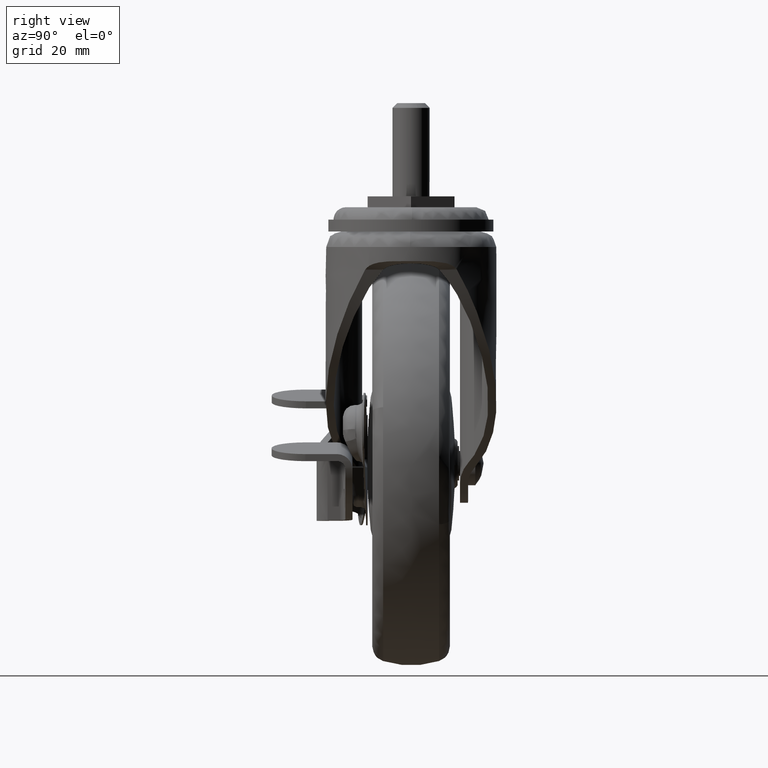
[diagram: clean part render]
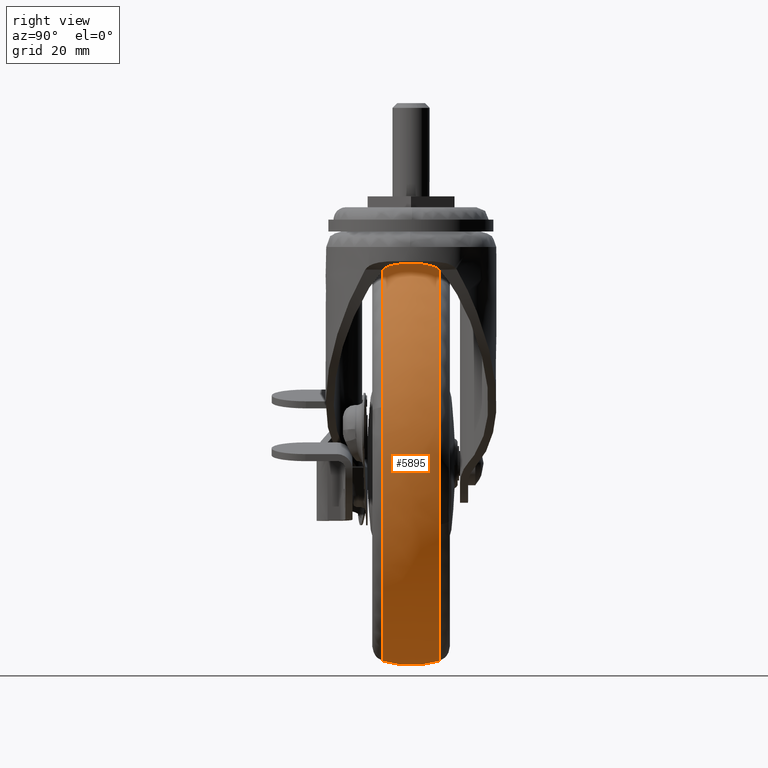
[diagram: same view with one face highlighted and labeled with its STEP entity id]
A machine part, right view. The second image highlights one B-rep face of the part: STEP entity #5895.
In plain terms, the highlighted face is a freeform B-spline surface patch.
Its self-contained STEP definition (entity closure, byte-faithful):
#5544=CARTESIAN_POINT('',(-75.680395793601491,8.999999999989424,-36.273550142216607));
#5545=VERTEX_POINT('',#5544);
#5559=CARTESIAN_POINT('',(-36.0,9.0,-22.382011957491709));
#5560=VERTEX_POINT('',#5559);
#5561=CARTESIAN_POINT('',(-36.0,9.0,-22.382011957491709));
#5562=CARTESIAN_POINT('',(-58.271812164731372,9.0,-22.382011957491706));
#5563=CARTESIAN_POINT('',(-75.680395793601491,8.999999999989424,-36.273550142216607));
#5571=(BOUNDED_CURVE()B_SPLINE_CURVE(2,(#5561,#5562,#5563),.UNSPECIFIED.,.F.,.U.)B_SPLINE_CURVE_WITH_KNOTS((3,3),(0.500000000000000,0.608098577602662),.UNSPECIFIED.)CURVE()GEOMETRIC_REPRESENTATION_ITEM()RATIONAL_B_SPLINE_CURVE((1.0,0.873354638627202,0.856230744649401))REPRESENTATION_ITEM(''));
#5572=EDGE_CURVE('',#5560,#5545,#5571,.T.);
#5574=CARTESIAN_POINT('',(24.504480880001211,9.000000000095877,-105.659285548293100));
#5575=VERTEX_POINT('',#5574);
#5576=CARTESIAN_POINT('',(24.504480880001211,9.000000000095877,-105.659285548293070));
#5577=CARTESIAN_POINT('',(27.618176042508306,9.000000000000002,-96.076317206993053));
#5578=CARTESIAN_POINT('',(27.618176042508299,9.0,-86.000188000000009));
#5579=CARTESIAN_POINT('',(27.618176042508303,9.000000000000002,-22.382011957491709));
#5580=CARTESIAN_POINT('',(-36.0,9.0,-22.382011957491709));
#5588=(BOUNDED_CURVE()B_SPLINE_CURVE(2,(#5576,#5577,#5578,#5579,#5580),.UNSPECIFIED.,.F.,.U.)B_SPLINE_CURVE_WITH_KNOTS((3,2,3),(0.197450174525956,0.250000000000000,0.500000000000000),.UNSPECIFIED.)CURVE()GEOMETRIC_REPRESENTATION_ITEM()RATIONAL_B_SPLINE_CURVE((0.902750339224154,0.938434049875288,1.0,0.707106781186548,1.0))REPRESENTATION_ITEM(''));
#5589=EDGE_CURVE('',#5575,#5560,#5588,.T.);
#5646=CARTESIAN_POINT('',(-36.0,9.0,-149.618364042508290));
#5647=VERTEX_POINT('',#5646);
#5648=CARTESIAN_POINT('',(-36.0,9.0,-149.618364042508290));
#5649=CARTESIAN_POINT('',(10.221310448965543,9.0,-149.618364042508380));
#5650=CARTESIAN_POINT('',(24.504480880001211,9.000000000095877,-105.659285548293070));
#5658=(BOUNDED_CURVE()B_SPLINE_CURVE(2,(#5648,#5649,#5650),.UNSPECIFIED.,.F.,.U.)B_SPLINE_CURVE_WITH_KNOTS((3,3),(0.0,0.197450174525956),.UNSPECIFIED.)CURVE()GEOMETRIC_REPRESENTATION_ITEM()RATIONAL_B_SPLINE_CURVE((1.0,0.768672731311260,0.902750339224154))REPRESENTATION_ITEM(''));
#5659=EDGE_CURVE('',#5647,#5575,#5658,.T.);
#5661=CARTESIAN_POINT('',(-36.799418031486482,9.000019924537934,-149.613334884306990));
#5662=VERTEX_POINT('',#5661);
#5663=CARTESIAN_POINT('',(-36.799418031486475,9.000019924537934,-149.613334884306990));
#5664=CARTESIAN_POINT('',(-36.399724795627868,9.000009962268965,-149.618360909759020));
#5665=CARTESIAN_POINT('',(-36.0,9.0,-149.618364042508290));
#5673=(BOUNDED_CURVE()B_SPLINE_CURVE(2,(#5663,#5664,#5665),.UNSPECIFIED.,.F.,.U.)B_SPLINE_CURVE_WITH_KNOTS((3,3),(0.997784324749205,1.0),.UNSPECIFIED.)CURVE()GEOMETRIC_REPRESENTATION_ITEM()RATIONAL_B_SPLINE_CURVE((0.994854361993686,0.997404174975797,1.0))REPRESENTATION_ITEM(''));
#5674=EDGE_CURVE('',#5662,#5647,#5673,.T.);
#5733=CARTESIAN_POINT('',(-75.680395793609506,-8.999999999958416,-36.273550142210539));
#5734=VERTEX_POINT('',#5733);
#5735=CARTESIAN_POINT('',(-36.799418329474904,-9.000026311397241,-149.613332871817990));
#5736=VERTEX_POINT('',#5735);
#5752=CARTESIAN_POINT('',(-75.680395793601505,8.999999999989424,-36.273550142216607));
#5753=CARTESIAN_POINT('',(-77.445774361403835,3.406374E-011,-34.061214832365856));
#5754=CARTESIAN_POINT('',(-75.680395793609506,-8.999999999958416,-36.273550142210546));
#5762=(BOUNDED_CURVE()B_SPLINE_CURVE(2,(#5752,#5753,#5754),.UNSPECIFIED.,.F.,.U.)B_SPLINE_CURVE_WITH_KNOTS((3,3),(-1.494101281925805,-0.505898718077761),.UNSPECIFIED.)CURVE()GEOMETRIC_REPRESENTATION_ITEM()RATIONAL_B_SPLINE_CURVE((0.798711031347099,0.761921763406467,0.798711031346834))REPRESENTATION_ITEM(''));
#5763=EDGE_CURVE('',#5545,#5734,#5762,.T.);
#5767=CARTESIAN_POINT('',(-36.799418031486475,9.000019924537934,-149.613334884307050));
#5768=CARTESIAN_POINT('',(-36.834984902715213,-0.000003509265218,-152.443494721556190));
#5769=CARTESIAN_POINT('',(-36.799418329474904,-9.000026311397241,-149.613332871817990));
#5777=(BOUNDED_CURVE()B_SPLINE_CURVE(2,(#5767,#5768,#5769),.UNSPECIFIED.,.F.,.U.)B_SPLINE_CURVE_WITH_KNOTS((3,3),(-1.494102428604183,-0.505897203825527),.UNSPECIFIED.)CURVE()GEOMETRIC_REPRESENTATION_ITEM()RATIONAL_B_SPLINE_CURVE((0.933442071422004,0.890446773224374,0.933442103406858))REPRESENTATION_ITEM(''));
#5778=EDGE_CURVE('',#5662,#5736,#5777,.T.);
#5783=CARTESIAN_POINT('',(-36.795886817225096,9.851524995517034,-149.331514713522240));
#5784=CARTESIAN_POINT('',(26.535439896297124,9.851524995517035,-150.127401530747330));
#5785=CARTESIAN_POINT('',(27.331326713522234,9.851524995517034,-86.796074817225090));
#5786=CARTESIAN_POINT('',(28.127213530747323,9.851524995517035,-23.464748103702874));
#5787=CARTESIAN_POINT('',(-35.204113182774897,9.851524995517034,-22.668861286477778));
#5788=CARTESIAN_POINT('',(-57.823185974327963,9.851524995517035,-22.384606672105274));
#5789=CARTESIAN_POINT('',(-75.504599141389861,9.851524995517035,-36.493854811216707));
#5790=CARTESIAN_POINT('',(-36.838925802636851,-0.000005147586262,-152.756268067315030));
#5791=CARTESIAN_POINT('',(29.917154264678206,-0.000005147586262,-153.595193869951940));
#5792=CARTESIAN_POINT('',(30.756080067315068,-0.000005147586262,-86.839113802636888));
#5793=CARTESIAN_POINT('',(31.595005869951923,-0.000005147586262,-20.083033735321806));
#5794=CARTESIAN_POINT('',(-35.161074197363128,-0.000005147586262,-19.244107932684937));
#5795=CARTESIAN_POINT('',(-59.003313302057975,-0.000005147586262,-18.944481747962946));
#5796=CARTESIAN_POINT('',(-77.640880116707393,-0.000005147586263,-33.816712401280888));
#5797=CARTESIAN_POINT('',(-36.795886777098090,-9.851534180496639,-149.331511520484670));
#5798=CARTESIAN_POINT('',(26.535436743386516,-9.851534180496641,-150.127398297582740));
#5799=CARTESIAN_POINT('',(27.331323520484613,-9.851534180496639,-86.796074777098113));
#5800=CARTESIAN_POINT('',(28.127210297582714,-9.851534180496641,-23.464751256613486));
#5801=CARTESIAN_POINT('',(-35.204113222901903,-9.851534180496639,-22.668864479515396));
#5802=CARTESIAN_POINT('',(-57.823184874047001,-9.851534180496641,-22.384609879474418));
#5803=CARTESIAN_POINT('',(-75.504597149647751,-9.851534180496641,-36.493857307226051));
#5811=(BOUNDED_SURFACE()B_SPLINE_SURFACE(2,2,((#5783,#5790,#5797),(#5784,#5791,#5798),(#5785,#5792,#5799),(#5786,#5793,#5800),(#5787,#5794,#5801),(#5788,#5795,#5802),(#5789,#5796,#5803)),.UNSPECIFIED.,.F.,.F.,.U.)B_SPLINE_SURFACE_WITH_KNOTS((3,2,2,3),(3,3),(0.0,107.695526217004000,215.391052434007890,262.777083969489580),(0.0,20.264964112582859),.UNSPECIFIED.)GEOMETRIC_REPRESENTATION_ITEM()RATIONAL_B_SPLINE_SURFACE(((0.937951842005578,0.885936992961819,0.937951893348408),(0.663232107908557,0.626452055427321,0.663232144213421),(0.937951842005578,0.885936992961819,0.937951893348408),(0.663232107908557,0.626452055427321,0.663232144213421),(0.937951842005578,0.885936992961819,0.937951893348408),(0.817075159002889,0.771763620446640,0.817075203729014),(0.802569957042566,0.758062815744818,0.802570000974686)))REPRESENTATION_ITEM('')SURFACE());
#5812=CARTESIAN_POINT('',(-64.497286982124081,-9.000000000324461,-29.121572003994540));
#5813=VERTEX_POINT('',#5812);
#5814=CARTESIAN_POINT('',(-64.497286982124081,-9.000000000324462,-29.121572003994547));
#5815=CARTESIAN_POINT('',(-70.463969943216682,-8.999999999999998,-32.110995598250575));
#5816=CARTESIAN_POINT('',(-75.680395793609506,-8.999999999958416,-36.273550142210539));
#5824=(BOUNDED_CURVE()B_SPLINE_CURVE(2,(#5814,#5815,#5816),.UNSPECIFIED.,.F.,.U.)B_SPLINE_CURVE_WITH_KNOTS((3,3),(0.576154610385096,0.608098577602674),.UNSPECIFIED.)CURVE()GEOMETRIC_REPRESENTATION_ITEM()RATIONAL_B_SPLINE_CURVE((0.875915174757458,0.861290987993897,0.856230744649397))REPRESENTATION_ITEM(''));
#5825=EDGE_CURVE('',#5813,#5734,#5824,.T.);
#5826=ORIENTED_EDGE('',*,*,#5825,.F.);
#5827=CARTESIAN_POINT('',(-36.0,-9.0,-22.382011957491709));
#5828=VERTEX_POINT('',#5827);
#5829=CARTESIAN_POINT('',(-36.0,-9.0,-22.382011957491709));
#5830=CARTESIAN_POINT('',(-51.045590752195899,-9.0,-22.382011957491706));
#5831=CARTESIAN_POINT('',(-64.497286982124081,-9.000000000324461,-29.121572003994544));
#5839=(BOUNDED_CURVE()B_SPLINE_CURVE(2,(#5829,#5830,#5831),.UNSPECIFIED.,.F.,.U.)B_SPLINE_CURVE_WITH_KNOTS((3,3),(0.500000000000000,0.576154610385095),.UNSPECIFIED.)CURVE()GEOMETRIC_REPRESENTATION_ITEM()RATIONAL_B_SPLINE_CURVE((1.0,0.910779324147300,0.875915174757458))REPRESENTATION_ITEM(''));
#5840=EDGE_CURVE('',#5828,#5813,#5839,.T.);
#5841=ORIENTED_EDGE('',*,*,#5840,.F.);
#5842=CARTESIAN_POINT('',(24.979407914213809,-9.000000000245667,-67.867782384702849));
#5843=VERTEX_POINT('',#5842);
#5844=CARTESIAN_POINT('',(24.979407914213805,-9.000000000245667,-67.867782384702849));
#5845=CARTESIAN_POINT('',(11.454080802711379,-9.0,-22.382011957491702));
#5846=CARTESIAN_POINT('',(-36.0,-9.0,-22.382011957491709));
#5854=(BOUNDED_CURVE()B_SPLINE_CURVE(2,(#5844,#5845,#5846),.UNSPECIFIED.,.F.,.U.)B_SPLINE_CURVE_WITH_KNOTS((3,3),(0.298526662064482,0.500000000000000),.UNSPECIFIED.)CURVE()GEOMETRIC_REPRESENTATION_ITEM()RATIONAL_B_SPLINE_CURVE((0.908365862590463,0.763959302187903,1.0))REPRESENTATION_ITEM(''));
#5855=EDGE_CURVE('',#5843,#5828,#5854,.T.);
#5856=ORIENTED_EDGE('',*,*,#5855,.F.);
#5857=CARTESIAN_POINT('',(-36.0,-9.0,-149.618364042508290));
#5858=VERTEX_POINT('',#5857);
#5859=CARTESIAN_POINT('',(-36.0,-9.0,-149.618364042508290));
#5860=CARTESIAN_POINT('',(27.618176042508303,-9.000000000000002,-149.618364042508400));
#5861=CARTESIAN_POINT('',(27.618176042508299,-9.0,-86.000188000000009));
#5862=CARTESIAN_POINT('',(27.618176042508299,-9.0,-76.741978202694284));
#5863=CARTESIAN_POINT('',(24.979407914213805,-9.000000000245667,-67.867782384702849));
#5871=(BOUNDED_CURVE()B_SPLINE_CURVE(2,(#5859,#5860,#5861,#5862,#5863),.UNSPECIFIED.,.F.,.U.)B_SPLINE_CURVE_WITH_KNOTS((3,2,3),(0.0,0.250000000000000,0.298526662064482),.UNSPECIFIED.)CURVE()GEOMETRIC_REPRESENTATION_ITEM()RATIONAL_B_SPLINE_CURVE((1.0,0.707106781186548,1.0,0.943147478998645,0.908365862590463))REPRESENTATION_ITEM(''));
#5872=EDGE_CURVE('',#5858,#5843,#5871,.T.);
#5873=ORIENTED_EDGE('',*,*,#5872,.F.);
#5874=CARTESIAN_POINT('',(-36.799418329474911,-9.000026311397241,-149.613332871817930));
#5875=CARTESIAN_POINT('',(-36.399724944641221,-9.000013155698621,-149.618359905545500));
#5876=CARTESIAN_POINT('',(-36.0,-9.0,-149.618364042508290));
#5884=(BOUNDED_CURVE()B_SPLINE_CURVE(2,(#5874,#5875,#5876),.UNSPECIFIED.,.F.,.U.)B_SPLINE_CURVE_WITH_KNOTS((3,3),(0.997784323855597,1.0),.UNSPECIFIED.)CURVE()GEOMETRIC_REPRESENTATION_ITEM()RATIONAL_B_SPLINE_CURVE((0.994854359936948,0.997404173928871,1.0))REPRESENTATION_ITEM(''));
#5885=EDGE_CURVE('',#5736,#5858,#5884,.T.);
#5886=ORIENTED_EDGE('',*,*,#5885,.F.);
#5887=ORIENTED_EDGE('',*,*,#5778,.F.);
#5888=ORIENTED_EDGE('',*,*,#5674,.T.);
#5889=ORIENTED_EDGE('',*,*,#5659,.T.);
#5890=ORIENTED_EDGE('',*,*,#5589,.T.);
#5891=ORIENTED_EDGE('',*,*,#5572,.T.);
#5892=ORIENTED_EDGE('',*,*,#5763,.T.);
#5893=EDGE_LOOP('',(#5826,#5841,#5856,#5873,#5886,#5887,#5888,#5889,#5890,#5891,#5892));
#5894=FACE_OUTER_BOUND('',#5893,.T.);
#5895=ADVANCED_FACE('',(#5894),#5811,.T.);